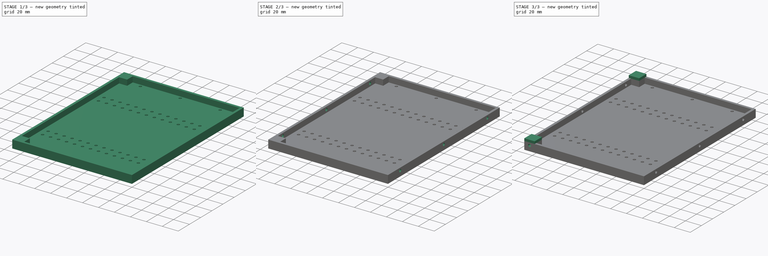
[diagram: build sequence overview — one tinted view per stage of 3, left to right]
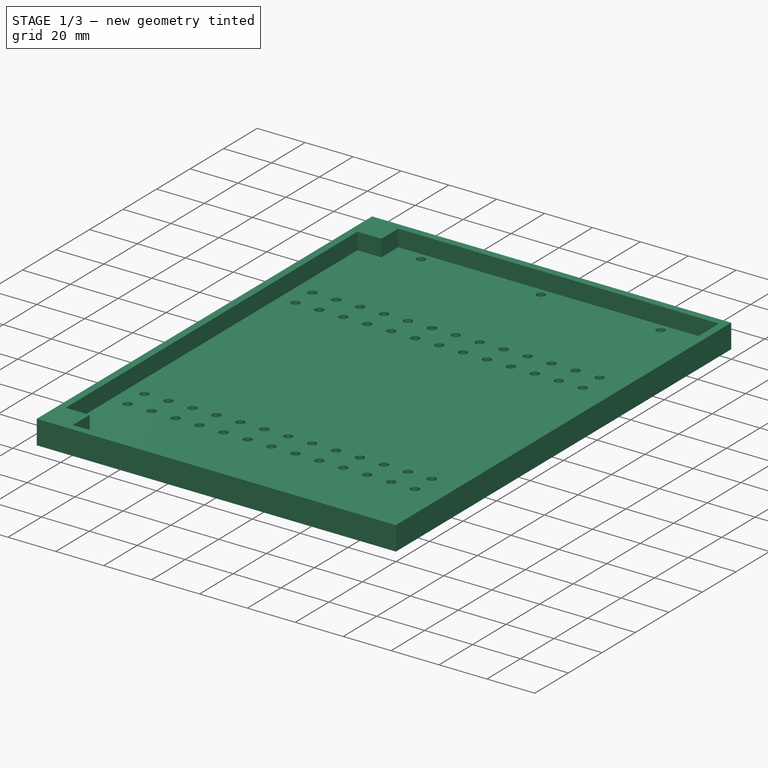
[diagram: stage 1 of 3 — iso view after this stage's code; geometry added in this stage tinted green]
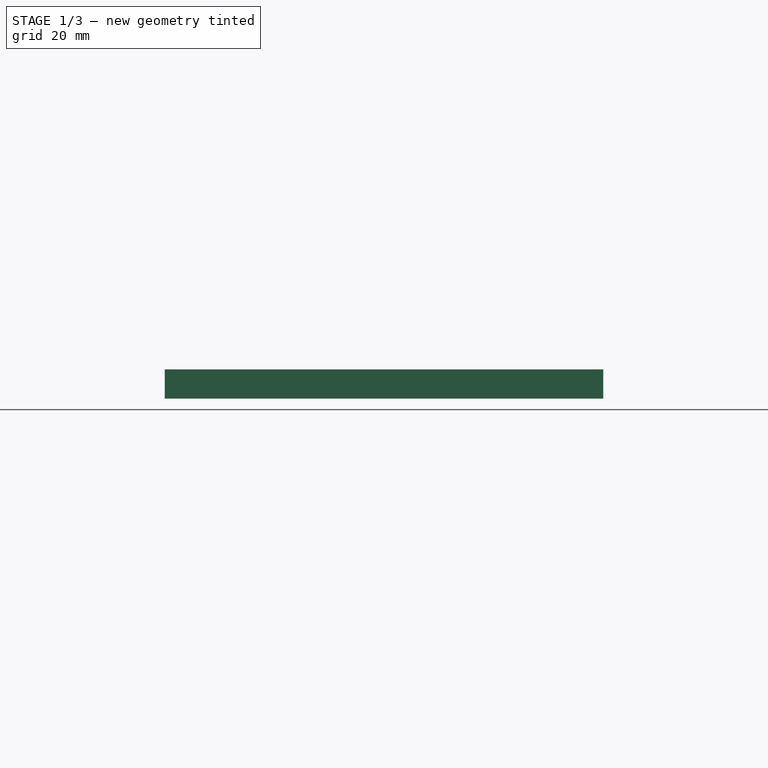
[diagram: stage 1 of 3 — front view after this stage's code; geometry added in this stage tinted green]
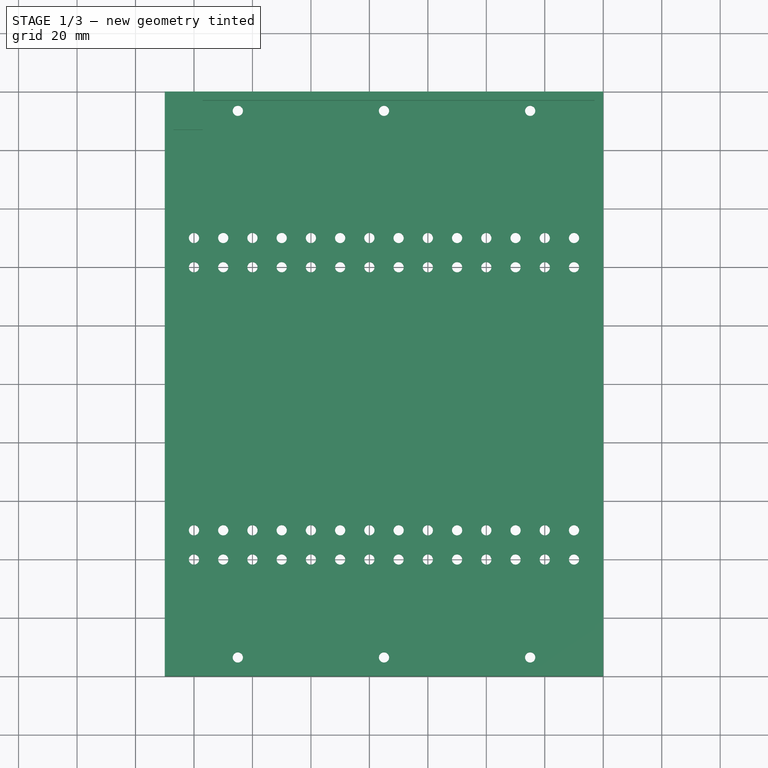
[diagram: stage 1 of 3 — top view after this stage's code; geometry added in this stage tinted green]
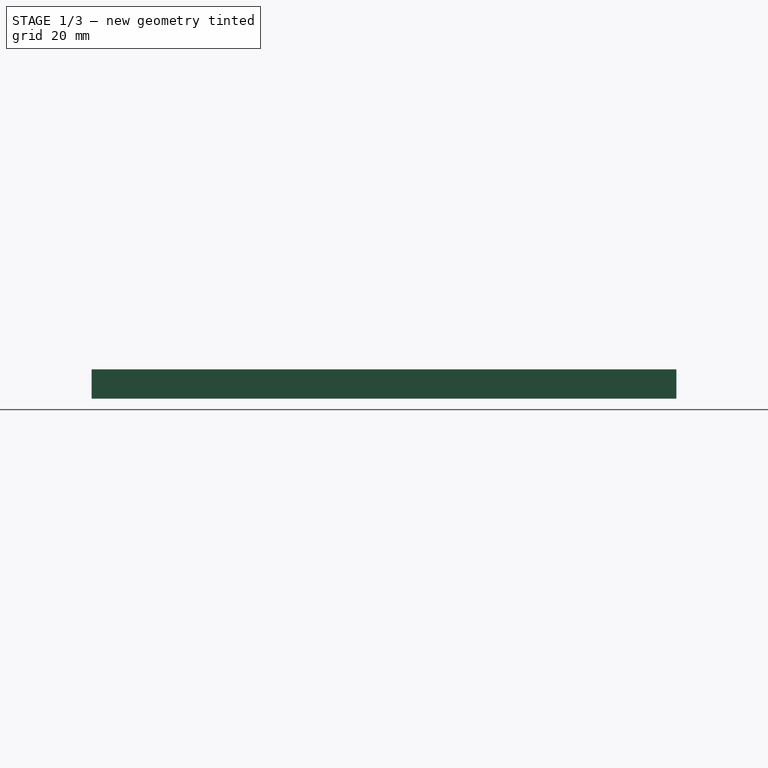
[diagram: stage 1 of 3 — right view after this stage's code; geometry added in this stage tinted green]
FCSTD DOCUMENT  (FreeCAD 0.21R29393 (Git))
Label: T41 Base Right  V010
License: All rights reserved
LicenseURL: http://en.wikipedia.org/wiki/All_rights_reserved
objects: Sketcher::SketchObject×6, PartDesign::Pad×3, PartDesign::Pocket×3, PartDesign::Body×1
note: 19 computed .brp shape members not serialized (recipe doc carries the construction recipe); baked Part::Feature solids carry a one-line shape summary decoded from their .brp

FEATURE [Sketcher::SketchObject] Sketch  label="SketchBase"
  FullyConstrained = true
  MapMode = 5
  Support = -> [XY_Plane]
  sketch-geometry (118):
    g0: Circle CenterX=-140 CenterY=40 CenterZ=0 NormalX=0 NormalY=0 NormalZ=1 AngleXU=0 Radius=1.75
    g1: Circle CenterX=-130 CenterY=40 CenterZ=0 NormalX=0 NormalY=0 NormalZ=1 AngleXU=0 Radius=1.75
    g2: LineSegment StartX=-140 StartY=40 StartZ=0 EndX=-130 EndY=40 EndZ=0
    g3: Circle CenterX=-120 CenterY=40 CenterZ=0 NormalX=0 NormalY=0 NormalZ=1 AngleXU=0 Radius=1.75
    g4: LineSegment StartX=-130 StartY=40 StartZ=0 EndX=-120 EndY=40 EndZ=0
    g5: Circle CenterX=-110 CenterY=40 CenterZ=0 NormalX=0 NormalY=0 NormalZ=1 AngleXU=0 Radius=1.75
    g6: LineSegment StartX=-120 StartY=40 StartZ=0 EndX=-110 EndY=40 EndZ=0
    g7: Circle CenterX=-100 CenterY=40 CenterZ=0 NormalX=0 NormalY=0 NormalZ=1 AngleXU=0 Radius=1.75
    g8: LineSegment StartX=-110 StartY=40 StartZ=0 EndX=-100 EndY=40 EndZ=0
    g9: Circle CenterX=-90 CenterY=40 CenterZ=0 NormalX=0 NormalY=0 NormalZ=1 AngleXU=0 Radius=1.75
    g10: LineSegment StartX=-100 StartY=40 StartZ=0 EndX=-90 EndY=40 EndZ=0
    g11: Circle CenterX=-80 CenterY=40 CenterZ=0 NormalX=0 NormalY=0 NormalZ=1 AngleXU=0 Radius=1.75
    g12: LineSegment StartX=-90 StartY=40 StartZ=0 EndX=-80 EndY=40 EndZ=0
    g13: Circle CenterX=-70 CenterY=40 CenterZ=0 NormalX=0 NormalY=0 NormalZ=1 AngleXU=0 Radius=1.75
    g14: LineSegment StartX=-80 StartY=40 StartZ=0 EndX=-70 EndY=40 EndZ=0
    g15: Circle CenterX=-60 CenterY=40 CenterZ=0 NormalX=0 NormalY=0 NormalZ=1 AngleXU=0 Radius=1.75
    g16: LineSegment StartX=-70 StartY=40 StartZ=0 EndX=-60 EndY=40 EndZ=0
    g17: Circle CenterX=-50 CenterY=40 CenterZ=0 NormalX=0 NormalY=0 NormalZ=1 AngleXU=0 Radius=1.75
    g18: LineSegment StartX=-60 StartY=40 StartZ=0 EndX=-50 EndY=40 EndZ=0
    g19: Circle CenterX=-40 CenterY=40 CenterZ=0 NormalX=0 NormalY=0 NormalZ=1 AngleXU=0 Radius=1.75
    g20: LineSegment StartX=-50 StartY=40 StartZ=0 EndX=-40 EndY=40 EndZ=0
    g21: Circle CenterX=-30 CenterY=40 CenterZ=0 NormalX=0 NormalY=0 NormalZ=1 AngleXU=0 Radius=1.75
    g22: LineSegment StartX=-40 StartY=40 StartZ=0 EndX=-30 EndY=40 EndZ=0
    g23: Circle CenterX=-20 CenterY=40 CenterZ=0 NormalX=0 NormalY=0 NormalZ=1 AngleXU=0 Radius=1.75
    g24: LineSegment StartX=-30 StartY=40 StartZ=0 EndX=-20 EndY=40 EndZ=0
    g25: Circle CenterX=-10 CenterY=40 CenterZ=0 NormalX=0 NormalY=0 NormalZ=1 AngleXU=0 Radius=1.75
    g26: LineSegment StartX=-20 StartY=40 StartZ=0 EndX=-10 EndY=40 EndZ=0
    g27: Circle CenterX=-140 CenterY=50 CenterZ=0 NormalX=0 NormalY=0 NormalZ=1 AngleXU=0 Radius=1.75
    g28: Circle CenterX=-130 CenterY=50 CenterZ=0 NormalX=0 NormalY=0 NormalZ=1 AngleXU=0 Radius=1.75
    g29: LineSegment StartX=-140 StartY=50 StartZ=0 EndX=-130 EndY=50 EndZ=0
    g30: Circle CenterX=-120 CenterY=50 CenterZ=0 NormalX=0 NormalY=0 NormalZ=1 AngleXU=0 Radius=1.75
    g31: LineSegment StartX=-130 StartY=50 StartZ=0 EndX=-120 EndY=50 EndZ=0
    g32: Circle CenterX=-110 CenterY=50 CenterZ=0 NormalX=0 NormalY=0 NormalZ=1 AngleXU=0 Radius=1.75
    g33: LineSegment StartX=-120 StartY=50 StartZ=0 EndX=-110 EndY=50 EndZ=0
    g34: Circle CenterX=-100 CenterY=50 CenterZ=0 NormalX=0 NormalY=0 NormalZ=1 AngleXU=0 Radius=1.75
    g35: LineSegment StartX=-110 StartY=50 StartZ=0 EndX=-100 EndY=50 EndZ=0
    g36: Circle CenterX=-90 CenterY=50 CenterZ=0 NormalX=0 NormalY=0 NormalZ=1 AngleXU=0 Radius=1.75
    g37: LineSegment StartX=-100 StartY=50 StartZ=0 EndX=-90 EndY=50 EndZ=0
    g38: Circle CenterX=-80 CenterY=50 CenterZ=0 NormalX=0 NormalY=0 NormalZ=1 AngleXU=0 Radius=1.75
    g39: LineSegment StartX=-90 StartY=50 StartZ=0 EndX=-80 EndY=50 EndZ=0
    g40: Circle CenterX=-70 CenterY=50 CenterZ=0 NormalX=0 NormalY=0 NormalZ=1 AngleXU=0 Radius=1.75
    g41: LineSegment StartX=-80 StartY=50 StartZ=0 EndX=-70 EndY=50 EndZ=0
    g42: Circle CenterX=-60 CenterY=50 CenterZ=0 NormalX=0 NormalY=0 NormalZ=1 AngleXU=0 Radius=1.75
    g43: LineSegment StartX=-70 StartY=50 StartZ=0 EndX=-60 EndY=50 EndZ=0
    g44: Circle CenterX=-50 CenterY=50 CenterZ=0 NormalX=0 NormalY=0 NormalZ=1 AngleXU=0 Radius=1.75
    g45: LineSegment StartX=-60 StartY=50 StartZ=0 EndX=-50 EndY=50 EndZ=0
    g46: Circle CenterX=-40 CenterY=50 CenterZ=0 NormalX=0 NormalY=0 NormalZ=1 AngleXU=0 Radius=1.75
    g47: LineSegment StartX=-50 StartY=50 StartZ=0 EndX=-40 EndY=50 EndZ=0
    g48: Circle CenterX=-30 CenterY=50 CenterZ=0 NormalX=0 NormalY=0 NormalZ=1 AngleXU=0 Radius=1.75
    g49: LineSegment StartX=-40 StartY=50 StartZ=0 EndX=-30 EndY=50 EndZ=0
    g50: Circle CenterX=-20 CenterY=50 CenterZ=0 NormalX=0 NormalY=0 NormalZ=1 AngleXU=0 Radius=1.75
    g51: LineSegment StartX=-30 StartY=50 StartZ=0 EndX=-20 EndY=50 EndZ=0
    g52: Circle CenterX=-10 CenterY=50 CenterZ=0 NormalX=0 NormalY=0 NormalZ=1 AngleXU=0 Radius=1.75
    g53: LineSegment StartX=-20 StartY=50 StartZ=0 EndX=-10 EndY=50 EndZ=0
    g54: Circle CenterX=-140 CenterY=140 CenterZ=0 NormalX=0 NormalY=0 NormalZ=1 AngleXU=0 Radius=1.75
    g55: Circle CenterX=-130 CenterY=140 CenterZ=0 NormalX=0 NormalY=0 NormalZ=1 AngleXU=0 Radius=1.75
    g56: LineSegment StartX=-140 StartY=140 StartZ=0 EndX=-130 EndY=140 EndZ=0
    g57: Circle CenterX=-120 CenterY=140 CenterZ=0 NormalX=0 NormalY=0 NormalZ=1 AngleXU=0 Radius=1.75
    g58: LineSegment StartX=-130 StartY=140 StartZ=0 EndX=-120 EndY=140 EndZ=0
    g59: Circle CenterX=-110 CenterY=140 CenterZ=0 NormalX=0 NormalY=0 NormalZ=1 AngleXU=0 Radius=1.75
    g60: LineSegment StartX=-120 StartY=140 StartZ=0 EndX=-110 EndY=140 EndZ=0
    g61: Circle CenterX=-100 CenterY=140 CenterZ=0 NormalX=0 NormalY=0 NormalZ=1 AngleXU=0 Radius=1.75
    g62: LineSegment StartX=-110 StartY=140 StartZ=0 EndX=-100 EndY=140 EndZ=0
    g63: Circle CenterX=-90 CenterY=140 CenterZ=0 NormalX=0 NormalY=0 NormalZ=1 AngleXU=0 Radius=1.75
    g64: LineSegment StartX=-100 StartY=140 StartZ=0 EndX=-90 EndY=140 EndZ=0
    g65: Circle CenterX=-80 CenterY=140 CenterZ=0 NormalX=0 NormalY=0 NormalZ=1 AngleXU=0 Radius=1.75
    g66: LineSegment StartX=-90 StartY=140 StartZ=0 EndX=-80 EndY=140 EndZ=0
    g67: Circle CenterX=-70 CenterY=140 CenterZ=0 NormalX=0 NormalY=0 NormalZ=1 AngleXU=0 Radius=1.75
    g68: LineSegment StartX=-80 StartY=140 StartZ=0 EndX=-70 EndY=140 EndZ=0
    g69: Circle CenterX=-60 CenterY=140 CenterZ=0 NormalX=0 NormalY=0 NormalZ=1 AngleXU=0 Radius=1.75
    g70: LineSegment StartX=-70 StartY=140 StartZ=0 EndX=-60 EndY=140 EndZ=0
    g71: Circle CenterX=-50 CenterY=140 CenterZ=0 NormalX=0 NormalY=0 NormalZ=1 AngleXU=0 Radius=1.75
    g72: LineSegment StartX=-60 StartY=140 StartZ=0 EndX=-50 EndY=140 EndZ=0
    g73: Circle CenterX=-40 CenterY=140 CenterZ=0 NormalX=0 NormalY=0 NormalZ=1 AngleXU=0 Radius=1.75
    g74: LineSegment StartX=-50 StartY=140 StartZ=0 EndX=-40 EndY=140 EndZ=0
    g75: Circle CenterX=-30 CenterY=140 CenterZ=0 NormalX=0 NormalY=0 NormalZ=1 AngleXU=0 Radius=1.75
    g76: LineSegment StartX=-40 StartY=140 StartZ=0 EndX=-30 EndY=140 EndZ=0
    g77: Circle CenterX=-20 CenterY=140 CenterZ=0 NormalX=0 NormalY=0 NormalZ=1 AngleXU=0 Radius=1.75
    g78: LineSegment StartX=-30 StartY=140 StartZ=0 EndX=-20 EndY=140 EndZ=0
    g79: Circle CenterX=-10 CenterY=140 CenterZ=0 NormalX=0 NormalY=0 NormalZ=1 AngleXU=0 Radius=1.75
    g80: LineSegment StartX=-20 StartY=140 StartZ=0 EndX=-10 EndY=140 EndZ=0
    g81: Circle CenterX=-140 CenterY=150 CenterZ=0 NormalX=0 NormalY=0 NormalZ=1 AngleXU=0 Radius=1.75
    g82: Circle CenterX=-130 CenterY=150 CenterZ=0 NormalX=0 NormalY=0 NormalZ=1 AngleXU=0 Radius=1.75
    g83: LineSegment StartX=-140 StartY=150 StartZ=0 EndX=-130 EndY=150 EndZ=0
    g84: Circle CenterX=-120 CenterY=150 CenterZ=0 NormalX=0 NormalY=0 NormalZ=1 AngleXU=0 Radius=1.75
    g85: LineSegment StartX=-130 StartY=150 StartZ=0 EndX=-120 EndY=150 EndZ=0
    g86: Circle CenterX=-110 CenterY=150 CenterZ=0 NormalX=0 NormalY=0 NormalZ=1 AngleXU=0 Radius=1.75
    g87: LineSegment StartX=-120 StartY=150 StartZ=0 EndX=-110 EndY=150 EndZ=0
    g88: Circle CenterX=-100 CenterY=150 CenterZ=0 NormalX=0 NormalY=0 NormalZ=1 AngleXU=0 Radius=1.75
    g89: LineSegment StartX=-110 StartY=150 StartZ=0 EndX=-100 EndY=150 EndZ=0
    g90: Circle CenterX=-90 CenterY=150 CenterZ=0 NormalX=0 NormalY=0 NormalZ=1 AngleXU=0 Radius=1.75
    g91: LineSegment StartX=-100 StartY=150 StartZ=0 EndX=-90 EndY=150 EndZ=0
    g92: Circle CenterX=-80 CenterY=150 CenterZ=0 NormalX=0 NormalY=0 NormalZ=1 AngleXU=0 Radius=1.75
    g93: LineSegment StartX=-90 StartY=150 StartZ=0 EndX=-80 EndY=150 EndZ=0
    g94: Circle CenterX=-70 CenterY=150 CenterZ=0 NormalX=0 NormalY=0 NormalZ=1 AngleXU=0 Radius=1.75
    g95: LineSegment StartX=-80 StartY=150 StartZ=0 EndX=-70 EndY=150 EndZ=0
    g96: Circle CenterX=-60 CenterY=150 CenterZ=0 NormalX=0 NormalY=0 NormalZ=1 AngleXU=0 Radius=1.75
    g97: LineSegment StartX=-70 StartY=150 StartZ=0 EndX=-60 EndY=150 EndZ=0
    g98: Circle CenterX=-50 CenterY=150 CenterZ=0 NormalX=0 NormalY=0 NormalZ=1 AngleXU=0 Radius=1.75
    g99: LineSegment StartX=-60 StartY=150 StartZ=0 EndX=-50 EndY=150 EndZ=0
    g100: Circle CenterX=-40 CenterY=150 CenterZ=0 NormalX=0 NormalY=0 NormalZ=1 AngleXU=0 Radius=1.75
    g101: LineSegment StartX=-50 StartY=150 StartZ=0 EndX=-40 EndY=150 EndZ=0
    g102: Circle CenterX=-30 CenterY=150 CenterZ=0 NormalX=0 NormalY=0 NormalZ=1 AngleXU=0 Radius=1.75
    g103: LineSegment StartX=-40 StartY=150 StartZ=0 EndX=-30 EndY=150 EndZ=0
    g104: Circle CenterX=-20 CenterY=150 CenterZ=0 NormalX=0 NormalY=0 NormalZ=1 AngleXU=0 Radius=1.75
    g105: LineSegment StartX=-30 StartY=150 StartZ=0 EndX=-20 EndY=150 EndZ=0
    g106: Circle CenterX=-10 CenterY=150 CenterZ=0 NormalX=0 NormalY=0 NormalZ=1 AngleXU=0 Radius=1.75
    g107: LineSegment StartX=-20 StartY=150 StartZ=0 EndX=-10 EndY=150 EndZ=0
    g108: LineSegment StartX=0 StartY=0 StartZ=0 EndX=-150 EndY=0 EndZ=0
    g109: LineSegment StartX=-150 StartY=0 StartZ=0 EndX=-150 EndY=200 EndZ=0
    g110: LineSegment StartX=-150 StartY=200 StartZ=0 EndX=0 EndY=200 EndZ=0
    g111: LineSegment StartX=0 StartY=200 StartZ=0 EndX=0 EndY=0 EndZ=0
    g112: Circle CenterX=-125 CenterY=193.5 CenterZ=0 NormalX=0 NormalY=0 NormalZ=1 AngleXU=0 Radius=1.75
    g113: Circle CenterX=-125 CenterY=6.5 CenterZ=0 NormalX=0 NormalY=0 NormalZ=1 AngleXU=0 Radius=1.75
    g114: Circle CenterX=-25 CenterY=6.5 CenterZ=0 NormalX=0 NormalY=0 NormalZ=1 AngleXU=0 Radius=1.75
    g115: Circle CenterX=-75 CenterY=6.5 CenterZ=0 NormalX=0 NormalY=0 NormalZ=1 AngleXU=0 Radius=1.75
    g116: Circle CenterX=-25 CenterY=193.5 CenterZ=0 NormalX=0 NormalY=0 NormalZ=1 AngleXU=0 Radius=1.75
    g117: Circle CenterX=-75 CenterY=193.5 CenterZ=0 NormalX=0 NormalY=0 NormalZ=1 AngleXU=0 Radius=1.75
  constraints (301):
    c: Coincident(g0,g2)
    c: Coincident(g1,g2)
    c: Distance(g2) = 10
    c: Angle(g2) = 0
    c: Coincident(g1,g4)
    c: Coincident(g3,g4)
    c: Equal(g2,g4)
    c: Parallel(g4,g2)
    c: Coincident(g3,g6)
    c: Coincident(g5,g6)
    c: Equal(g2,g6)
    c: Parallel(g6,g2)
    c: Coincident(g5,g8)
    c: Coincident(g7,g8)
    c: Equal(g2,g8)
    c: Parallel(g8,g2)
    c: Coincident(g7,g10)
    c: Coincident(g9,g10)
    c: Equal(g2,g10)
    c: Parallel(g10,g2)
    c: Coincident(g9,g12)
    c: Coincident(g11,g12)
    c: Equal(g2,g12)
    c: Parallel(g12,g2)
    c: Coincident(g11,g14)
    c: Coincident(g13,g14)
    c: Equal(g2,g14)
    c: Parallel(g14,g2)
    c: Coincident(g13,g16)
    c: Coincident(g15,g16)
    c: Equal(g2,g16)
    c: Parallel(g16,g2)
    c: Coincident(g15,g18)
    c: Coincident(g17,g18)
    c: Equal(g2,g18)
    c: Parallel(g18,g2)
    c: Coincident(g17,g20)
    c: Coincident(g19,g20)
    c: Equal(g2,g20)
    c: Parallel(g20,g2)
    c: Coincident(g19,g22)
    c: Coincident(g21,g22)
    c: Equal(g2,g22)
    c: Parallel(g22,g2)
    c: Coincident(g21,g24)
    c: Coincident(g23,g24)
    c: Equal(g2,g24)
    c: Parallel(g24,g2)
    c: Coincident(g23,g26)
    c: Coincident(g25,g26)
    c: Equal(g2,g26)
    c: Parallel(g26,g2)
    c: Coincident(g27,g29)
    c: Coincident(g28,g29)
    c: Distance(g29) = 10
    c: Angle(g29) = 0
    c: Coincident(g28,g31)
    c: Coincident(g30,g31)
    c: Equal(g29,g31)
    c: Parallel(g31,g29)
    c: Coincident(g30,g33)
    c: Coincident(g32,g33)
    c: Equal(g29,g33)
    c: Parallel(g33,g29)
    c: Coincident(g32,g35)
    c: Coincident(g34,g35)
    c: Equal(g29,g35)
    c: Parallel(g35,g29)
    c: Coincident(g34,g37)
    c: Coincident(g36,g37)
    c: Equal(g29,g37)
    c: Parallel(g37,g29)
    c: Coincident(g36,g39)
    c: Coincident(g38,g39)
    c: Equal(g29,g39)
    c: Parallel(g39,g29)
    c: Coincident(g38,g41)
    c: Coincident(g40,g41)
    c: Equal(g29,g41)
    c: Parallel(g41,g29)
    c: Coincident(g40,g43)
    c: Coincident(g42,g43)
    c: Equal(g29,g43)
    c: Parallel(g43,g29)
    c: Coincident(g42,g45)
    c: Coincident(g44,g45)
    c: Equal(g29,g45)
    c: Parallel(g45,g29)
    c: Coincident(g44,g47)
    c: Coincident(g46,g47)
    c: Equal(g29,g47)
    c: Parallel(g47,g29)
    c: Coincident(g46,g49)
    c: Coincident(g48,g49)
    c: Equal(g29,g49)
    c: Parallel(g49,g29)
    c: Coincident(g48,g51)
    c: Coincident(g50,g51)
    c: Equal(g29,g51)
    c: Parallel(g51,g29)
    c: Coincident(g50,g53)
    c: Coincident(g52,g53)
    c: Equal(g29,g53)
    c: Parallel(g53,g29)
    c: Coincident(g54,g56)
    c: Coincident(g55,g56)
    c: Distance(g56) = 10
    c: Angle(g56) = 0
    c: Coincident(g55,g58)
    c: Coincident(g57,g58)
    c: Equal(g56,g58)
    c: Parallel(g58,g56)
    c: Coincident(g57,g60)
    c: Coincident(g59,g60)
    c: Equal(g56,g60)
    c: Parallel(g60,g56)
    c: Coincident(g59,g62)
    c: Coincident(g61,g62)
    c: Equal(g56,g62)
    c: Parallel(g62,g56)
    c: Coincident(g61,g64)
    c: Coincident(g63,g64)
    c: Equal(g56,g64)
    c: Parallel(g64,g56)
    c: Coincident(g63,g66)
    c: Coincident(g65,g66)
    c: Equal(g56,g66)
    c: Parallel(g66,g56)
    c: Coincident(g65,g68)
    c: Coincident(g67,g68)
    c: Equal(g56,g68)
    c: Parallel(g68,g56)
    c: Coincident(g67,g70)
    c: Coincident(g69,g70)
    c: Equal(g56,g70)
    c: Parallel(g70,g56)
    c: Coincident(g69,g72)
    c: Coincident(g71,g72)
    c: Equal(g56,g72)
    c: Parallel(g72,g56)
    c: Coincident(g71,g74)
    c: Coincident(g73,g74)
    c: Equal(g56,g74)
    c: Parallel(g74,g56)
    c: Coincident(g73,g76)
    c: Coincident(g75,g76)
    c: Equal(g56,g76)
    c: Parallel(g76,g56)
    c: Coincident(g75,g78)
    c: Coincident(g77,g78)
    c: Equal(g56,g78)
    c: Parallel(g78,g56)
    c: Coincident(g77,g80)
    c: Coincident(g79,g80)
    c: Equal(g56,g80)
    c: Parallel(g80,g56)
    c: Coincident(g81,g83)
    c: Coincident(g82,g83)
    c: Distance(g83) = 10
    c: Angle(g83) = 0
    c: Coincident(g82,g85)
    c: Coincident(g84,g85)
    c: Equal(g83,g85)
    c: Parallel(g85,g83)
    c: Coincident(g84,g87)
    c: Coincident(g86,g87)
    c: Equal(g83,g87)
    c: Parallel(g87,g83)
    c: Coincident(g86,g89)
    c: Coincident(g88,g89)
    c: Equal(g83,g89)
    c: Parallel(g89,g83)
    c: Coincident(g88,g91)
    c: Coincident(g90,g91)
    c: Equal(g83,g91)
    c: Parallel(g91,g83)
    c: Coincident(g90,g93)
    c: Coincident(g92,g93)
    c: Equal(g83,g93)
    c: Parallel(g93,g83)
    c: Coincident(g92,g95)
    c: Coincident(g94,g95)
    c: Equal(g83,g95)
    c: Parallel(g95,g83)
    c: Coincident(g94,g97)
    c: Coincident(g96,g97)
    c: Equal(g83,g97)
    c: Parallel(g97,g83)
    c: Coincident(g96,g99)
    c: Coincident(g98,g99)
    c: Equal(g83,g99)
    c: Parallel(g99,g83)
    c: Coincident(g98,g101)
    c: Coincident(g100,g101)
    c: Equal(g83,g101)
    c: Parallel(g101,g83)
    c: Coincident(g100,g103)
    c: Coincident(g102,g103)
    c: Equal(g83,g103)
    c: Parallel(g103,g83)
    c: Coincident(g102,g105)
    c: Coincident(g104,g105)
    c: Equal(g83,g105)
    c: Parallel(g105,g83)
    c: Coincident(g104,g107)
    c: Coincident(g106,g107)
    c: Equal(g83,g107)
    c: Parallel(g107,g83)
    c: DistanceY(g54,g81) = 10
    c: Coincident(g108,g109)
    c: Coincident(g109,g110)
    c: Coincident(g110,g111)
    c: Coincident(g111,g108)
    c: Horizontal(g108)
    c: Horizontal(g110)
    c: Vertical(g109)
    c: Vertical(g111)
    c: Coincident(g108,g-1)
    c: DistanceY(g109,g109) = 200
    c: DistanceX(g110,g110) = 150
    c: DistanceX(g25,g108) = 10
    c: DistanceY(g108,g25) = 40
    c: DistanceY(g25,g52) = 10
    c: Vertical(g52,g25)
    c: Vertical(g106,g79)
    c: DistanceY(g108,g79) = 140
    c: DistanceX(g79,g108) = 10
    c: DistanceX(g112,g108) = 125
    c: DistanceX(g113,g108) = 125
    c: DistanceX(g114,g108) = 25
    c: Diameter(g114) = 3.5
    c: DistanceX(g115,g108) = 75
    c: Diameter(g115) = 3.5
    c: DistanceX(g117,g110) = 75
    c: DistanceX(g116,g110) = 25
    c: Equal(g117,g116)
    c: DistanceY(g112,g109) = 6.5
    c: Diameter(g81) = 3.5
    c: Equal(g81,g82)
    c: Equal(g82,g84)
    c: Equal(g84,g86)
    c: Equal(g86,g88)
    c: Equal(g88,g90)
    c: Equal(g90,g92)
    c: Equal(g92,g94)
    c: Equal(g94,g96)
    c: Equal(g96,g98)
    c: Equal(g98,g100)
    c: Equal(g100,g102)
    c: Equal(g102,g104)
    c: Equal(g104,g106)
    c: Equal(g106,g79)
    c: Equal(g79,g77)
    c: Equal(g77,g75)
    c: Equal(g75,g73)
    c: Equal(g73,g71)
    c: Equal(g71,g69)
    c: Equal(g69,g67)
    c: Equal(g67,g65)
    c: Equal(g65,g63)
    c: Equal(g63,g61)
    c: Equal(g61,g59)
    c: Equal(g59,g57)
    c: Equal(g57,g55)
    c: Equal(g55,g54)
    c: Diameter(g27) = 3.5
    c: Equal(g27,g28)
    c: Equal(g28,g30)
    c: Equal(g30,g32)
    c: Equal(g32,g34)
    c: Equal(g34,g36)
    c: Equal(g36,g38)
    c: Equal(g38,g40)
    c: Equal(g40,g42)
    c: Equal(g42,g44)
    c: Equal(g44,g46)
    c: Equal(g46,g48)
    c: Equal(g48,g50)
    c: Equal(g50,g52)
    c: Equal(g52,g25)
    c: Equal(g25,g23)
    c: Equal(g23,g21)
    c: Equal(g21,g19)
    c: Equal(g19,g17)
    c: Equal(g17,g15)
    c: Equal(g15,g13)
    c: Equal(g13,g11)
    c: Equal(g11,g9)
    c: Equal(g9,g7)
    c: Equal(g7,g5)
    c: Equal(g5,g3)
    c: Equal(g3,g1)
    c: Equal(g1,g0)
    c: DistanceY(g108,g113) = 6.5
    c: Horizontal(g113,g115)
    c: Horizontal(g115,g114)
    c: Diameter(g113) = 3.5
    c: DistanceY(g117,g110) = 6.5
    c: DistanceY(g116,g110) = 6.5
    c: Equal(g112,g117)
    c: Diameter(g117) = 3.5
FEATURE [PartDesign::Pad] Pad  label="Base"
  Direction = (0,0,1)
  Length = 3
  Length2 = 100
  Profile = -> Sketch
  Type = 0
FEATURE [Sketcher::SketchObject] Sketch001
  AttachmentOffset = pos=(0,0,3) rot=(0,0,1;0rad)
  FullyConstrained = true
  MapMode = 5
  Placement = pos=(0,0,3) rot=(0,0,1;0rad)
  Support = -> [XY_Plane]
  sketch-geometry (12):
    g0: LineSegment StartX=0 StartY=0 StartZ=0 EndX=-150 EndY=0 EndZ=0
    g1: LineSegment StartX=-150 StartY=0 StartZ=0 EndX=-150 EndY=200 EndZ=0
    g2: LineSegment StartX=-150 StartY=200 StartZ=0 EndX=0 EndY=200 EndZ=0
    g3: LineSegment StartX=0 StartY=200 StartZ=0 EndX=0 EndY=0 EndZ=0
    g4: LineSegment StartX=-3 StartY=197 StartZ=0 EndX=-137 EndY=197 EndZ=0
    g5: LineSegment StartX=-147 StartY=187 StartZ=0 EndX=-147 EndY=13 EndZ=0
    g6: LineSegment StartX=-137 StartY=3 StartZ=0 EndX=-3 EndY=3 EndZ=0
    g7: LineSegment StartX=-3 StartY=3 StartZ=0 EndX=-3 EndY=197 EndZ=0
    g8: LineSegment StartX=-137 StartY=197 StartZ=0 EndX=-137 EndY=187 EndZ=0
    g9: LineSegment StartX=-137 StartY=187 StartZ=0 EndX=-147 EndY=187 EndZ=0
    g10: LineSegment StartX=-137 StartY=3 StartZ=0 EndX=-137 EndY=13 EndZ=0
    g11: LineSegment StartX=-137 StartY=13 StartZ=0 EndX=-147 EndY=13 EndZ=0
  constraints (36):
    c: Coincident(g0,g1)
    c: Coincident(g1,g2)
    c: Coincident(g2,g3)
    c: Coincident(g3,g0)
    c: Horizontal(g0)
    c: Horizontal(g2)
    c: Vertical(g1)
    c: Vertical(g3)
    c: Coincident(g0,g-1)
    c: DistanceX(g2,g2) = 150
    c: DistanceY(g1,g1) = 200
    c: Coincident(g6,g7)
    c: Coincident(g7,g4)
    c: Horizontal(g4)
    c: Horizontal(g6)
    c: Vertical(g5)
    c: Vertical(g7)
    c: DistanceX(g4,g2) = 3
    c: DistanceY(g4,g2) = 3
    c: Coincident(g8,g9)
    c: Horizontal(g9)
    c: Vertical(g8)
    c: Coincident(g10,g11)
    c: Horizontal(g11)
    c: Vertical(g10)
    c: DistanceY(g8,g8) = 10
    c: DistanceX(g9,g9) = 10
    c: DistanceX(g11,g11) = 10
    c: DistanceY(g10,g10) = 10
    c: PointOnObject(g10,g6)
    c: PointOnObject(g6,g10)
    c: Coincident(g11,g5)
    c: Coincident(g5,g9)
    c: Coincident(g8,g4)
    c: DistanceX(g0,g5) = 3
    c: DistanceY(g0,g6) = 3
FEATURE [PartDesign::Pad] Pad001  label="Flange"
  BaseFeature = -> Pad
  Direction = (0,0,1)
  Length = 7
  Length2 = 100
  Profile = -> Sketch001
  Type = 0
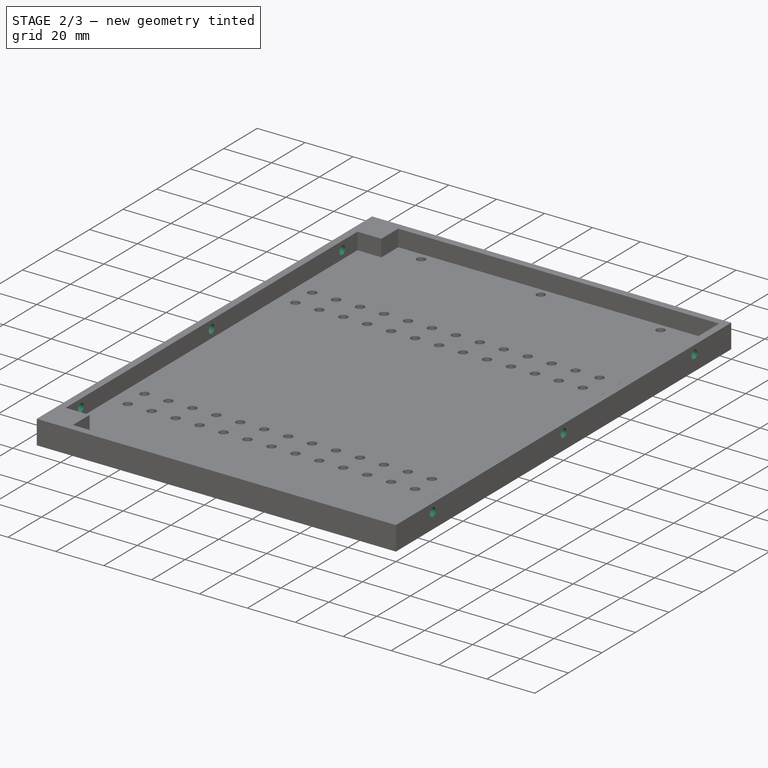
[diagram: stage 2 of 3 — iso view after this stage's code; geometry added in this stage tinted green]
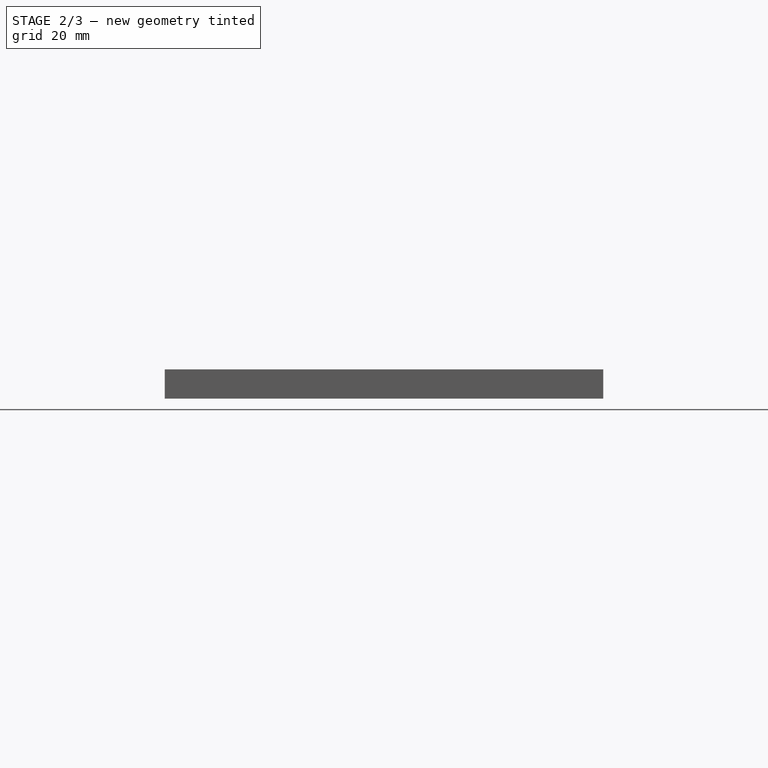
[diagram: stage 2 of 3 — front view after this stage's code; geometry added in this stage tinted green]
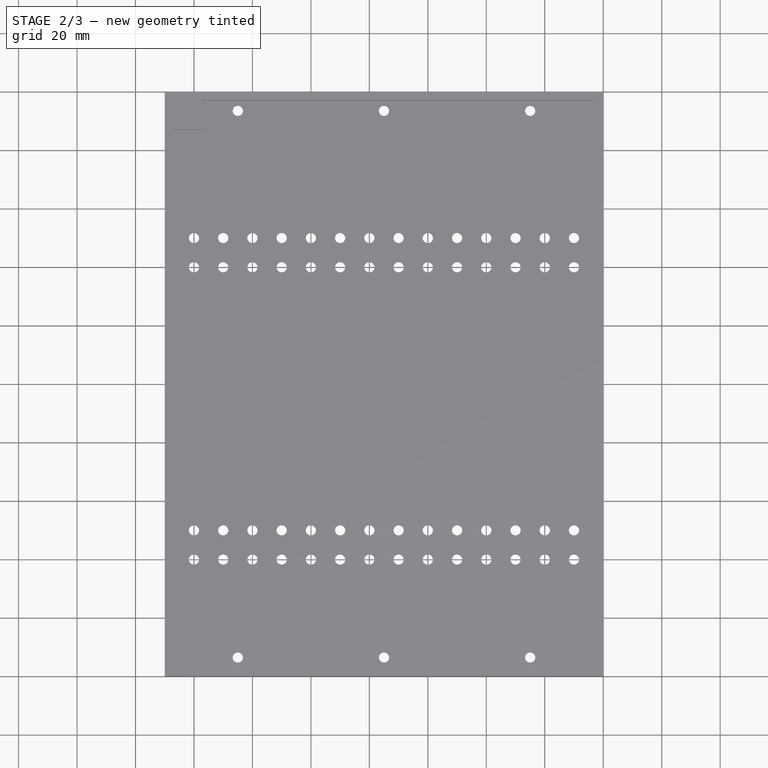
[diagram: stage 2 of 3 — top view after this stage's code; geometry added in this stage tinted green]
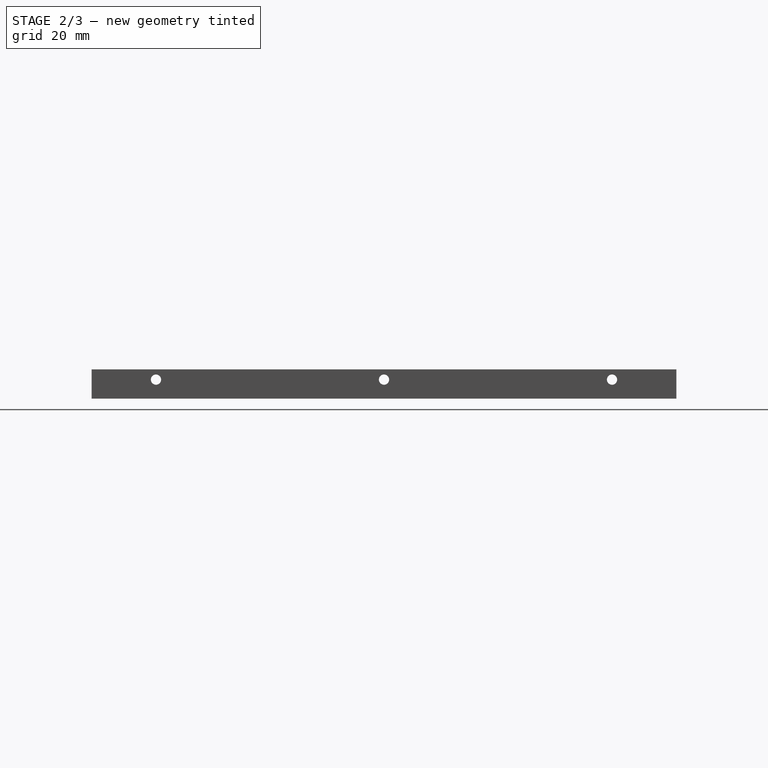
[diagram: stage 2 of 3 — right view after this stage's code; geometry added in this stage tinted green]
FEATURE [Sketcher::SketchObject] Sketch002
  FullyConstrained = true
  MapMode = 5
  Placement = pos=(0,0,0) rot=(0.57735,0.57735,0.57735;2.0944rad)
  Support = -> [YZ_Plane]
  sketch-geometry (3):
    g0: Circle CenterX=22 CenterY=6.5 CenterZ=0 NormalX=0 NormalY=0 NormalZ=1 AngleXU=0 Radius=1.75
    g1: Circle CenterX=100 CenterY=6.5 CenterZ=0 NormalX=0 NormalY=0 NormalZ=1 AngleXU=0 Radius=1.75
    g2: Circle CenterX=178 CenterY=6.5 CenterZ=0 NormalX=0 NormalY=0 NormalZ=1 AngleXU=0 Radius=1.75
  constraints (9):
    c: DistanceX(g-1,g0) = 22
    c: DistanceX(g-1,g1) = 100
    c: DistanceX(g-1,g2) = 178
    c: DistanceY(g-1,g0) = 6.5
    c: Horizontal(g0,g1)
    c: Horizontal(g1,g2)
    c: Equal(g0,g1)
    c: Equal(g0,g2)
    c: Diameter(g0) = 3.5
FEATURE [PartDesign::Pocket] Pocket  label="Center Mtg Holes"
  BaseFeature = -> Pad001
  Direction = (-1,2e-16,-3e-16)
  Length = 5
  Length2 = 100
  Profile = -> Sketch002
  Type = 0
FEATURE [Sketcher::SketchObject] Sketch003
  AttachmentOffset = pos=(0,0,-150) rot=(0,0,1;0rad)
  FullyConstrained = true
  MapMode = 5
  Placement = pos=(-150,3.33e-14,-3.33e-14) rot=(0.57735,0.57735,0.57735;2.0944rad)
  Support = -> [YZ_Plane]
  sketch-geometry (3):
    g0: Circle CenterX=100 CenterY=6.5 CenterZ=0 NormalX=0 NormalY=0 NormalZ=1 AngleXU=0 Radius=1.75
    g1: Circle CenterX=22 CenterY=6.5 CenterZ=0 NormalX=0 NormalY=0 NormalZ=1 AngleXU=0 Radius=1.75
    g2: Circle CenterX=178 CenterY=6.5 CenterZ=0 NormalX=0 NormalY=0 NormalZ=1 AngleXU=0 Radius=1.75
  constraints (9):
    c: DistanceY(g-1,g0) = 6.5
    c: DistanceX(g-1,g0) = 100
    c: Diameter(g0) = 3.5
    c: DistanceX(g-1,g1) = 22
    c: Diameter(g1) = 3.5
    c: DistanceX(g-1,g2) = 178
    c: Diameter(g2) = 3.5
    c: Horizontal(g1,g0)
    c: Horizontal(g0,g2)
FEATURE [PartDesign::Pocket] Pocket001  label="Side Mtg holes"
  BaseFeature = -> Pocket
  Direction = (-1,2e-16,-3e-16)
  Length = 15
  Length2 = 100
  Midplane = true
  Profile = -> Sketch003
  Type = 0
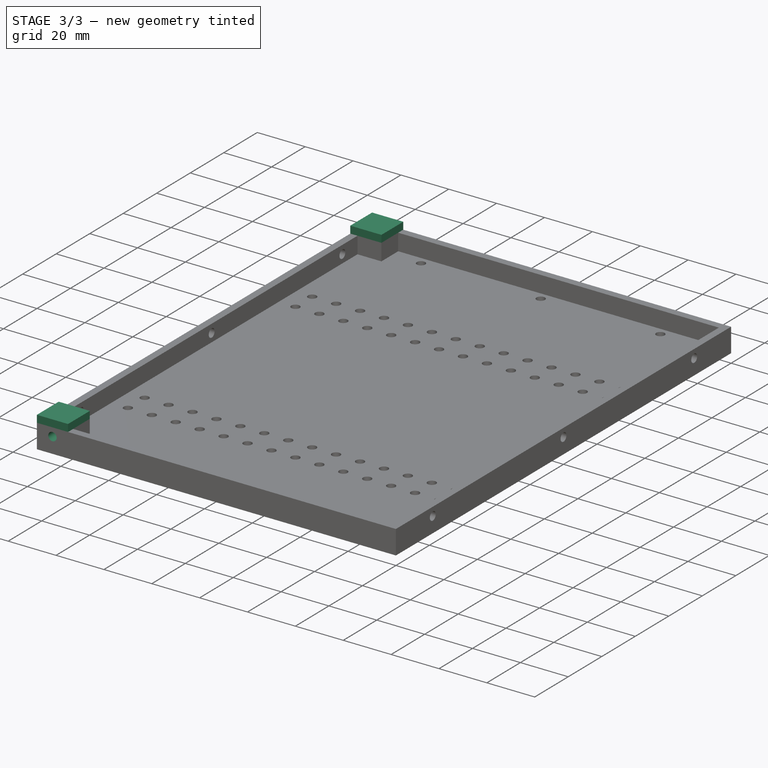
[diagram: stage 3 of 3 — iso view after this stage's code; geometry added in this stage tinted green]
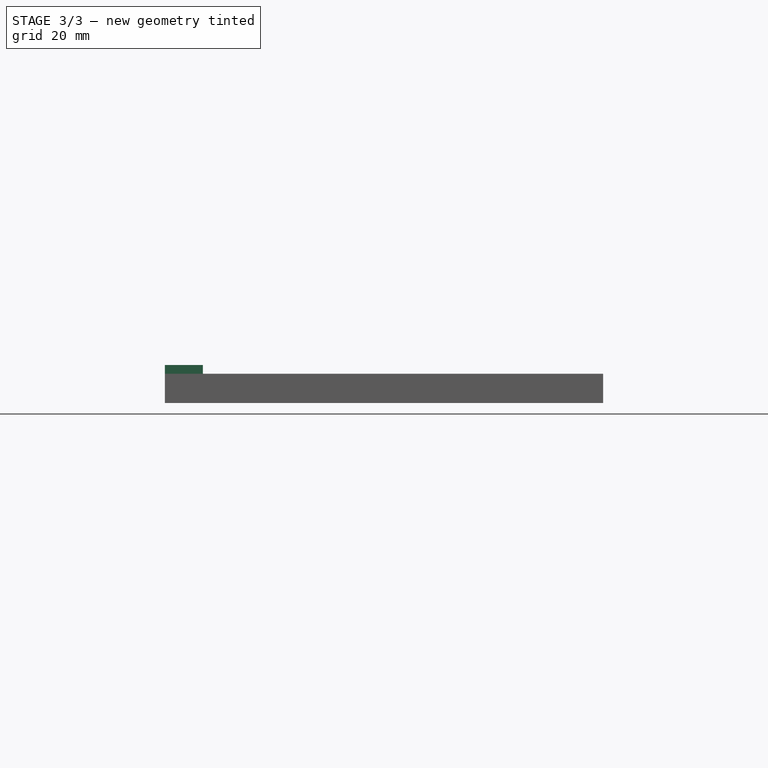
[diagram: stage 3 of 3 — front view after this stage's code; geometry added in this stage tinted green]
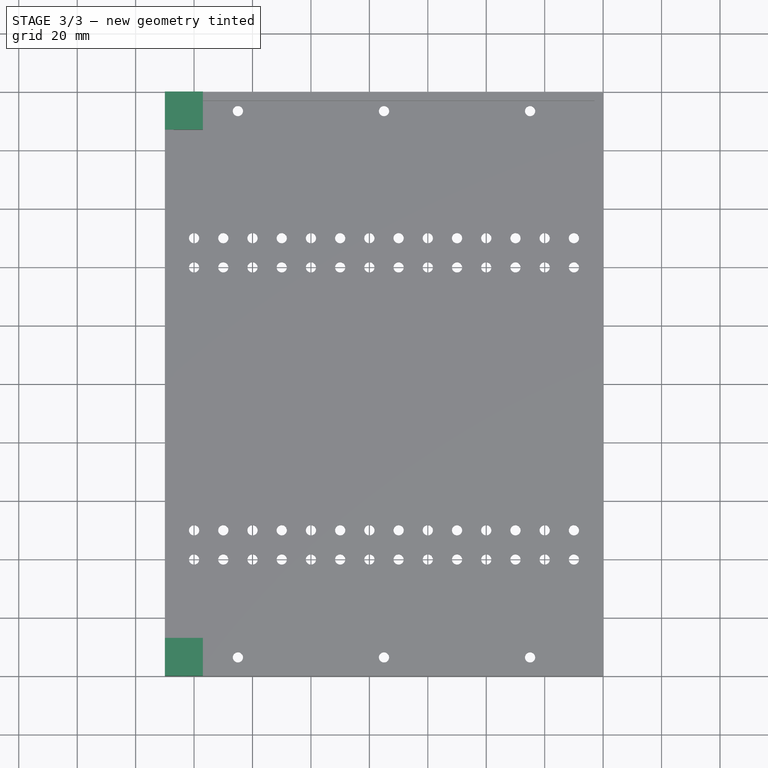
[diagram: stage 3 of 3 — top view after this stage's code; geometry added in this stage tinted green]
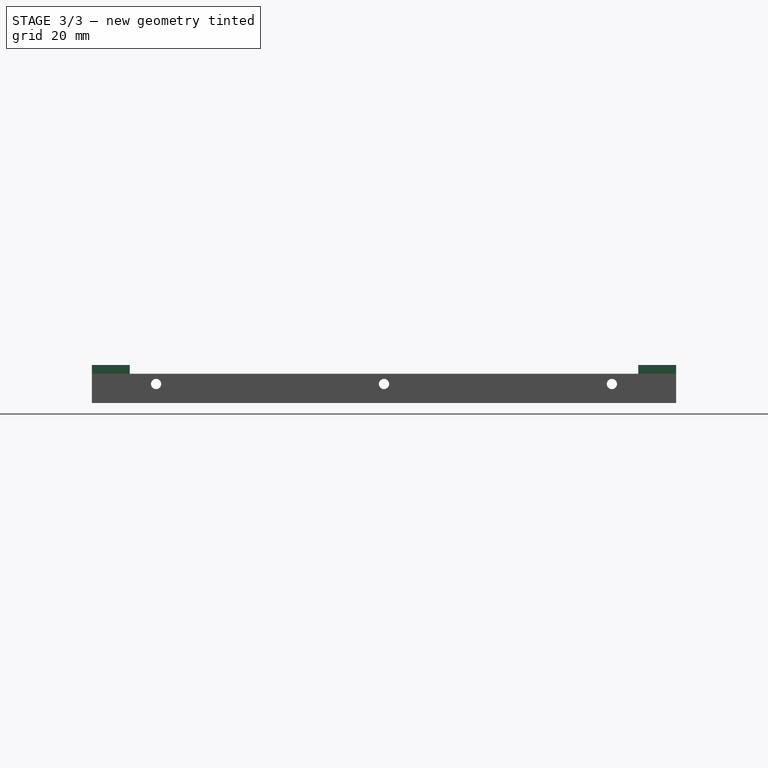
[diagram: stage 3 of 3 — right view after this stage's code; geometry added in this stage tinted green]
FEATURE [Sketcher::SketchObject] Sketch004
  FullyConstrained = true
  MapMode = 5
  Placement = pos=(0,0,0) rot=(1,0,0;1.5708rad)
  Support = -> [XZ_Plane]
  sketch-geometry (1):
    g0: Circle CenterX=-143.5 CenterY=6.5 CenterZ=0 NormalX=0 NormalY=0 NormalZ=1 AngleXU=0 Radius=1.75
  constraints (3):
    c: DistanceY(g-1,g0) = 6.5
    c: DistanceX(g0,g-1) = 143.5
    c: Diameter(g0) = 3.5
FEATURE [PartDesign::Pocket] Pocket002  label="2mm Front mtg holes"
  BaseFeature = -> Pocket001
  Direction = (0,1,2e-16)
  Length = 14
  Length2 = 100
  Profile = -> Sketch004
  ReferenceAxis = -> Sketch004 [N_Axis]
  Type = 0
FEATURE [Sketcher::SketchObject] Sketch005
  AttachmentOffset = pos=(0,0,10) rot=(0,0,1;0rad)
  FullyConstrained = true
  MapMode = 5
  Placement = pos=(0,0,10) rot=(0,0,1;0rad)
  Support = -> [XY_Plane]
  sketch-geometry (8):
    g0: LineSegment StartX=-150 StartY=200 StartZ=0 EndX=-137 EndY=200 EndZ=0
    g1: LineSegment StartX=-137 StartY=200 StartZ=0 EndX=-137 EndY=187 EndZ=0
    g2: LineSegment StartX=-137 StartY=187 StartZ=0 EndX=-150 EndY=187 EndZ=0
    g3: LineSegment StartX=-150 StartY=187 StartZ=0 EndX=-150 EndY=200 EndZ=0
    g4: LineSegment StartX=-150 StartY=0 StartZ=0 EndX=-137 EndY=0 EndZ=0
    g5: LineSegment StartX=-137 StartY=0 StartZ=0 EndX=-137 EndY=13 EndZ=0
    g6: LineSegment StartX=-137 StartY=13 StartZ=0 EndX=-150 EndY=13 EndZ=0
    g7: LineSegment StartX=-150 StartY=13 StartZ=0 EndX=-150 EndY=0 EndZ=0
  constraints (24):
    c: Coincident(g0,g1)
    c: Coincident(g1,g2)
    c: Coincident(g2,g3)
    c: Coincident(g3,g0)
    c: Horizontal(g0)
    c: Horizontal(g2)
    c: Vertical(g1)
    c: Vertical(g3)
    c: Coincident(g4,g5)
    c: Coincident(g5,g6)
    c: Coincident(g6,g7)
    c: Coincident(g7,g4)
    c: Horizontal(g4)
    c: Horizontal(g6)
    c: Vertical(g5)
    c: Vertical(g7)
    c: PointOnObject(g4,g-1)
    c: DistanceX(g4,g-1) = 150
    c: DistanceX(g0,g-1) = 150
    c: DistanceX(g2,g2) = 13
    c: DistanceY(g1,g1) = 13
    c: DistanceX(g6,g6) = 13
    c: DistanceY(g5,g5) = 13
    c: DistanceY(g-1,g0) = 200
FEATURE [PartDesign::Pad] Pad002
  BaseFeature = -> Pocket002
  Direction = (0,0,1)
  Length = 3
  Length2 = 100
  Profile = -> Sketch005
  Type = 0
FEATURE [PartDesign::Body] Body
  Group = -> [Sketch,Pad,Sketch001,Pad001,Sketch002,Pocket,Sketch003,Sketch004,Pocket001,Pocket002,Sketch005,Pad002]
  Origin = -> Origin
  Tip = -> Pad002
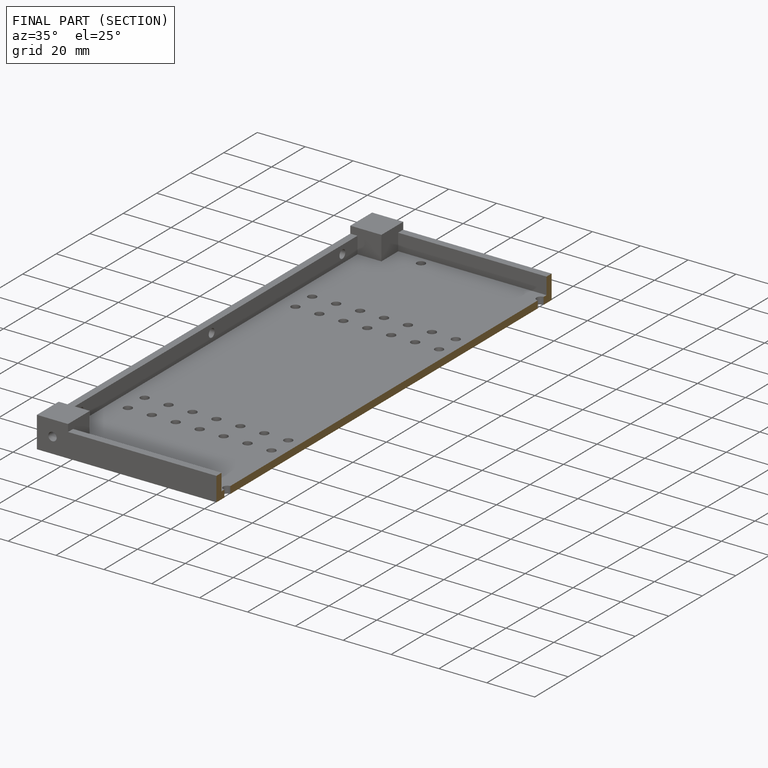
[diagram: finished part — half-section view (interior)]
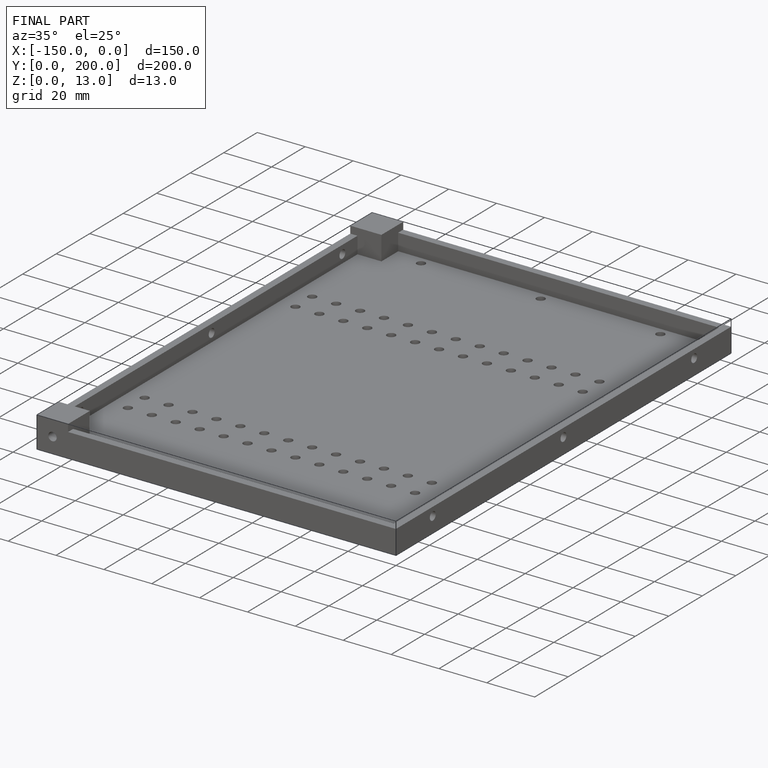
[diagram: finished part — iso view with bounding-box wireframe]
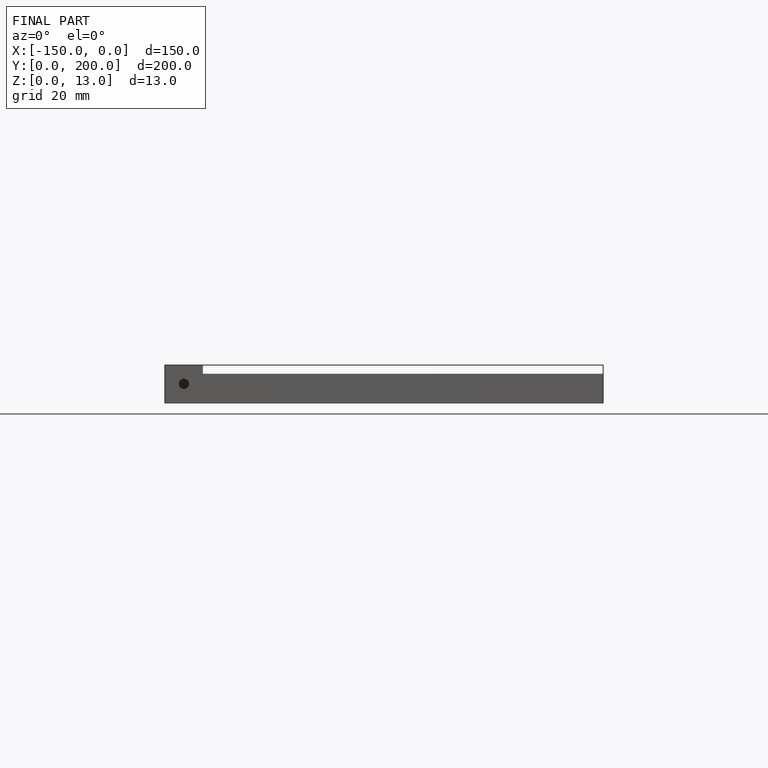
[diagram: finished part — front view with bounding-box wireframe]
